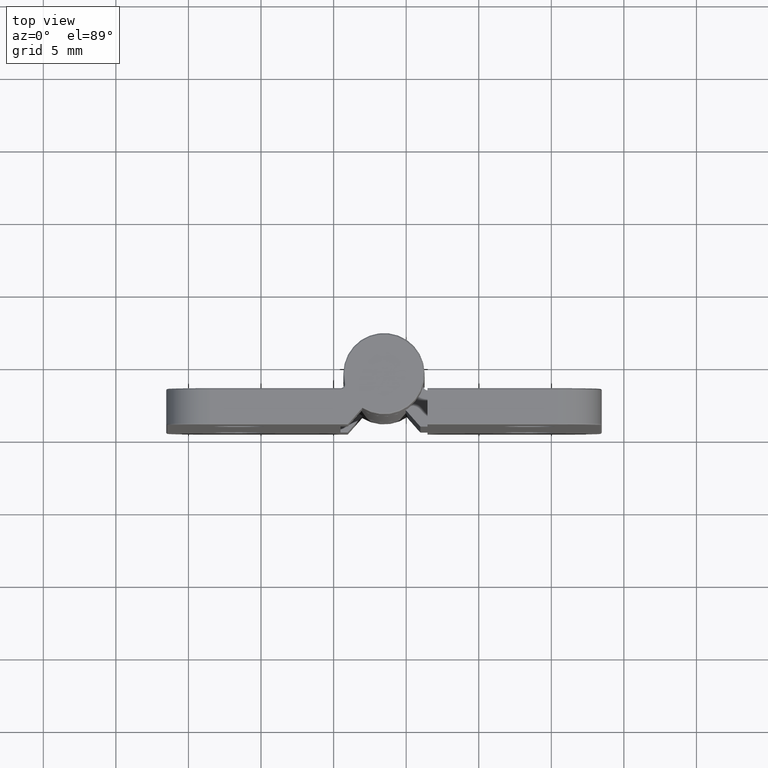
[diagram: clean part render]
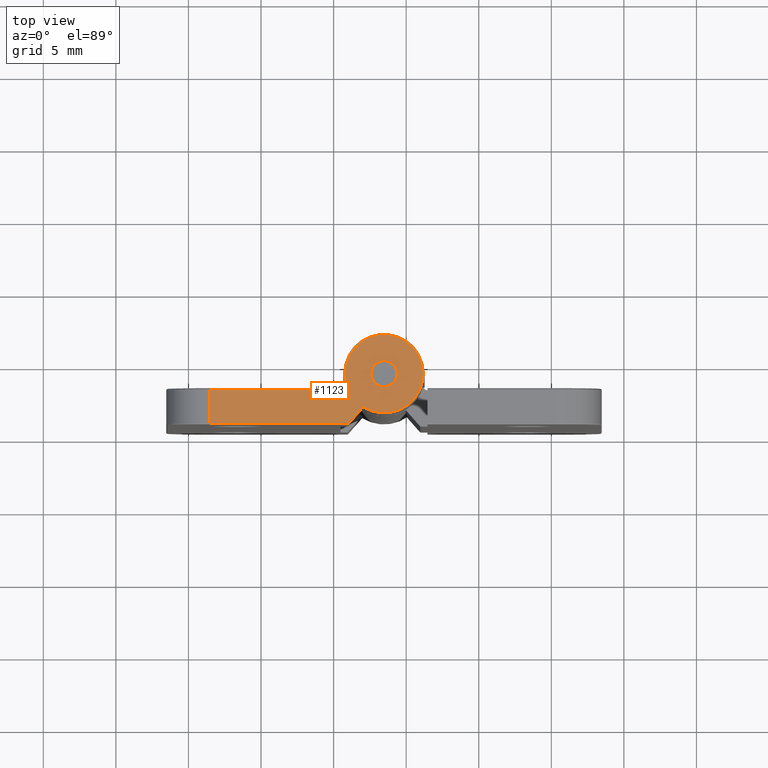
[diagram: same view with one face highlighted and labeled with its STEP entity id]
A machine part, top view. The second image highlights one B-rep face of the part: STEP entity #1123.
In plain terms, the highlighted planar face has unit normal (0, 0, 1).
Its self-contained STEP definition (entity closure, byte-faithful):
#98=FACE_BOUND('',#308,.T.);
#130=CIRCLE('',#1191,0.9);
#141=CIRCLE('',#1213,2.7);
#143=CIRCLE('',#1216,0.384210526315788);
#228=FACE_OUTER_BOUND('',#307,.T.);
#307=EDGE_LOOP('',(#914,#915,#916,#917,#918,#919));
#308=EDGE_LOOP('',(#920));
#379=LINE('',#1791,#448);
#385=LINE('',#1827,#454);
#390=LINE('',#1865,#459);
#399=LINE('',#1908,#468);
#448=VECTOR('',#1382,1.48124381821327);
#454=VECTOR('',#1430,9.58805282407669);
#459=VECTOR('',#1461,9.);
#468=VECTOR('',#1520,2.3);
#526=VERTEX_POINT('',#1779);
#527=VERTEX_POINT('',#1790);
#530=VERTEX_POINT('',#1802);
#536=VERTEX_POINT('',#1823);
#543=VERTEX_POINT('',#1854);
#544=VERTEX_POINT('',#1858);
#546=VERTEX_POINT('',#1863);
#633=EDGE_CURVE('',#527,#526,#379,.T.);
#639=EDGE_CURVE('',#530,#530,#130,.T.);
#651=EDGE_CURVE('',#527,#536,#385,.T.);
#661=EDGE_CURVE('',#543,#526,#141,.T.);
#663=EDGE_CURVE('',#544,#543,#143,.T.);
#665=EDGE_CURVE('',#546,#544,#390,.T.);
#687=EDGE_CURVE('',#536,#546,#399,.T.);
#914=ORIENTED_EDGE('',*,*,#651,.F.);
#915=ORIENTED_EDGE('',*,*,#633,.T.);
#916=ORIENTED_EDGE('',*,*,#661,.F.);
#917=ORIENTED_EDGE('',*,*,#663,.F.);
#918=ORIENTED_EDGE('',*,*,#665,.F.);
#919=ORIENTED_EDGE('',*,*,#687,.F.);
#920=ORIENTED_EDGE('',*,*,#639,.T.);
#1078=PLANE('',#1244);
#1123=ADVANCED_FACE('',(#228,#98),#1078,.T.);
#1191=AXIS2_PLACEMENT_3D('',#1803,#1397,#1398);
#1213=AXIS2_PLACEMENT_3D('',#1856,#1449,#1450);
#1216=AXIS2_PLACEMENT_3D('',#1860,#1455,#1456);
#1244=AXIS2_PLACEMENT_3D('',#1909,#1521,#1522);
#1382=DIRECTION('',(0.660851295301948,0.75051686556515,0.));
#1397=DIRECTION('center_axis',(0.,0.,-1.));
#1398=DIRECTION('ref_axis',(-1.,0.,0.));
#1430=DIRECTION('',(-1.,-7.83773951454306E-17,0.));
#1449=DIRECTION('center_axis',(0.,0.,-1.));
#1450=DIRECTION('ref_axis',(0.813977108855373,0.580896949776334,0.));
#1455=DIRECTION('center_axis',(0.,0.,1.));
#1456=DIRECTION('ref_axis',(0.784882765533424,-0.619644288579023,0.));
#1461=DIRECTION('',(1.,0.,0.));
#1520=DIRECTION('',(0.,1.,0.));
#1521=DIRECTION('center_axis',(0.,0.,1.));
#1522=DIRECTION('ref_axis',(1.,0.,0.));
#1779=CARTESIAN_POINT('',(-1.43306527999907,1.21169846758318,20.));
#1790=CARTESIAN_POINT('',(-2.41194717592331,0.1,20.));
#1791=CARTESIAN_POINT('',(-2.5,0.,20.));
#1802=CARTESIAN_POINT('',(0.9,3.5,20.));
#1803=CARTESIAN_POINT('Origin',(0.,3.5,20.));
#1823=CARTESIAN_POINT('',(-12.,0.099999999999999,20.));
#1827=CARTESIAN_POINT('',(-11.8021417344313,0.0999999999999993,20.));
#1854=CARTESIAN_POINT('',(-2.62627986348123,2.87337883959044,20.));
#1856=CARTESIAN_POINT('Origin',(0.,3.5,20.));
#1858=CARTESIAN_POINT('',(-3.,2.4,20.));
#1860=CARTESIAN_POINT('Origin',(-3.,2.78421052631579,20.));
#1863=CARTESIAN_POINT('',(-12.,2.4,20.));
#1865=CARTESIAN_POINT('',(-5.80214173443126,2.4,20.));
#1908=CARTESIAN_POINT('',(-12.,1.87415960455924,20.));
#1909=CARTESIAN_POINT('Origin',(-8.60428346886252,1.24831920911848,20.));